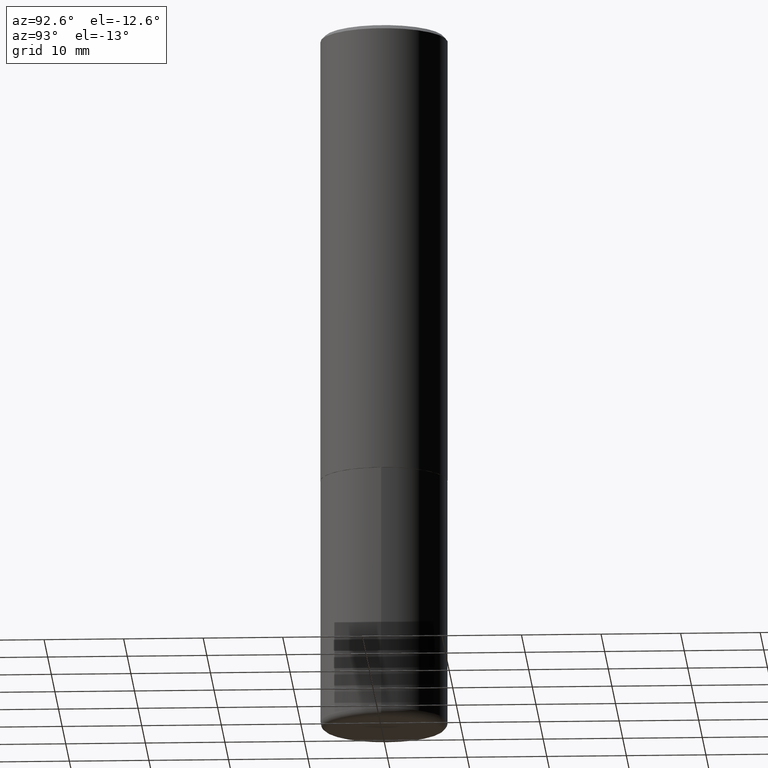
[diagram: clean part render]
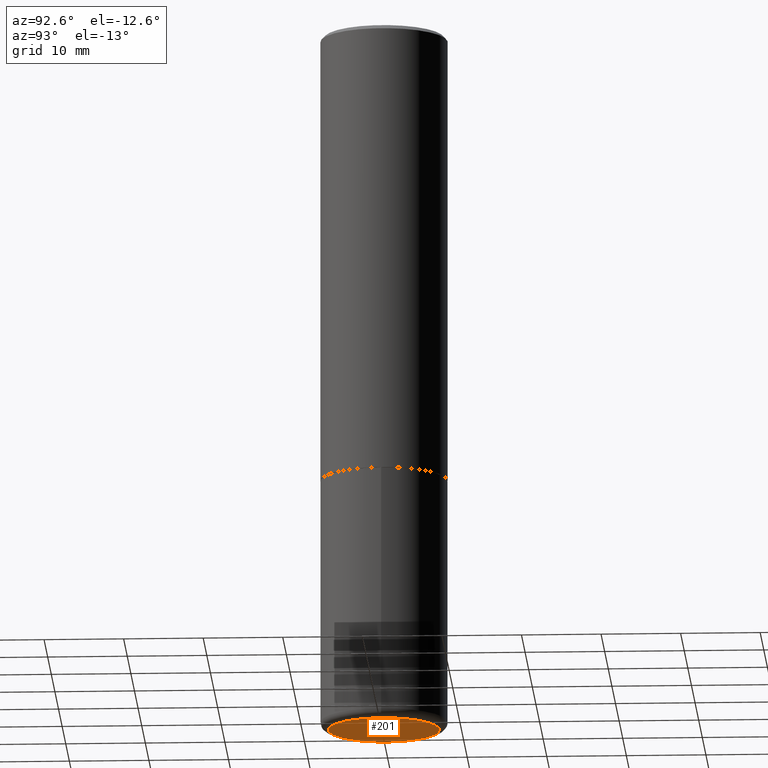
[diagram: same view with one face highlighted and labeled with its STEP entity id]
A machine part, auxiliary view. The second image highlights one B-rep face of the part: STEP entity #201.
In plain terms, the highlighted planar face has unit normal (0, -0, -1).
Its self-contained STEP definition (entity closure, byte-faithful):
#27 = DIRECTION ( 'NONE',  ( 2.438088387897960049E-29, -3.491481338843145188E-15, -1.000000000000000000 ) ) ;
#34 = CARTESIAN_POINT ( 'NONE',  ( 0.2755500000000000171, -1.415795682900894930E-14, -3.503899999999999793 ) ) ;
#36 = ORIENTED_EDGE ( 'NONE', *, *, #154, .F. ) ;
#44 = VERTEX_POINT ( 'NONE', #114 ) ;
#50 = CARTESIAN_POINT ( 'NONE',  ( 8.568678149992099474E-29, -1.223380146317249786E-14, -3.503899999999999793 ) ) ;
#56 = ORIENTED_EDGE ( 'NONE', *, *, #261, .F. ) ;
#88 = DIRECTION ( 'NONE',  ( 1.000000000000000000, -6.982962677686268288E-15, 0.000000000000000000 ) ) ;
#94 = CIRCLE ( 'NONE', #149, 0.2755500000000000171 ) ;
#95 = AXIS2_PLACEMENT_3D ( 'NONE', #348, #27, #310 ) ;
#98 = CARTESIAN_POINT ( 'NONE',  ( 8.568678149992099474E-29, -1.223380146317249786E-14, -3.503899999999999793 ) ) ;
#114 = CARTESIAN_POINT ( 'NONE',  ( -0.2755500000000000171, -1.006714185346559079E-14, -3.503899999999999793 ) ) ;
#131 = AXIS2_PLACEMENT_3D ( 'NONE', #98, #134, #192 ) ;
#134 = DIRECTION ( 'NONE',  ( -2.445468806185136597E-29, 3.491481338843145583E-15, 1.000000000000000000 ) ) ;
#149 = AXIS2_PLACEMENT_3D ( 'NONE', #50, #375, #88 ) ;
#154 = EDGE_CURVE ( 'NONE', #44, #355, #94, .T. ) ;
#189 = EDGE_LOOP ( 'NONE', ( #56, #36 ) ) ;
#192 = DIRECTION ( 'NONE',  ( 1.000000000000000000, -6.982962677686268288E-15, 0.000000000000000000 ) ) ;
#201 = ADVANCED_FACE ( 'NONE', ( #219 ), #351, .T. ) ;
#219 = FACE_OUTER_BOUND ( 'NONE', #189, .T. ) ;
#261 = EDGE_CURVE ( 'NONE', #355, #44, #356, .T. ) ;
#310 = DIRECTION ( 'NONE',  ( -1.000000000000000000, 6.982962677686265922E-15, -4.876176775795935793E-29 ) ) ;
#348 = CARTESIAN_POINT ( 'NONE',  ( 8.568678149992099474E-29, -1.223380146317249786E-14, -3.503899999999999793 ) ) ;
#351 = PLANE ( 'NONE',  #95 ) ;
#355 = VERTEX_POINT ( 'NONE', #34 ) ;
#356 = CIRCLE ( 'NONE', #131, 0.2755500000000000171 ) ;
#375 = DIRECTION ( 'NONE',  ( -2.445468806185136597E-29, 3.491481338843145583E-15, 1.000000000000000000 ) ) ;